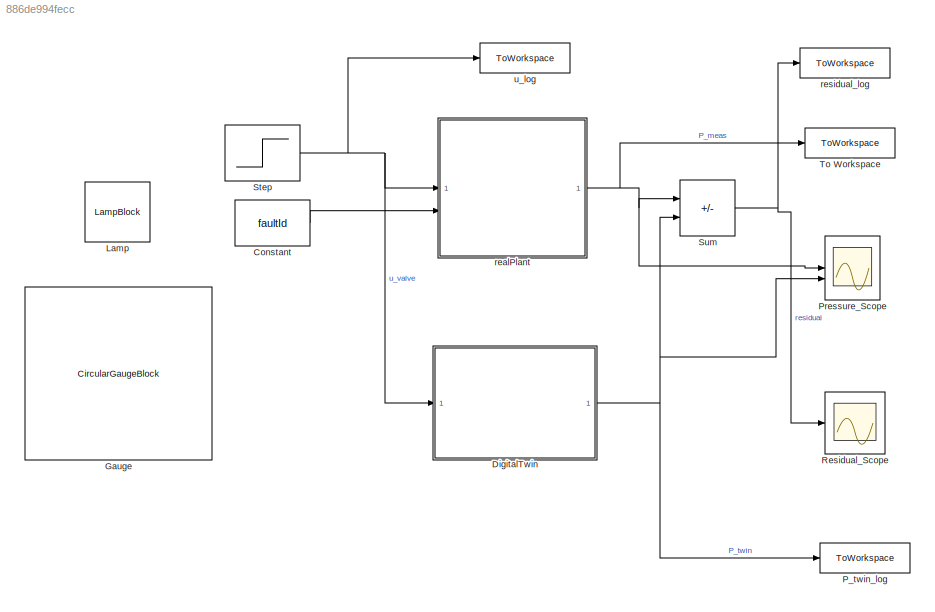
MODEL slx_886de994fecc
KIND model
CONFIG AbsTol = auto
CONFIG EnableMultiTasking = off
CONFIG FixedStep = 0.02
CONFIG MaxStep = auto
CONFIG MinStep = auto
CONFIG RelTol = 1e-3
CONFIG SampleTimeConstraint = Unconstrained
CONFIG SolverName = ode4
CONFIG StartTime = 0.0
CONFIG StopTime = 20
BLOCK [Constant] Constant
  LockScale = on
  OutDataTypeStr = uint8
  Value = faultId
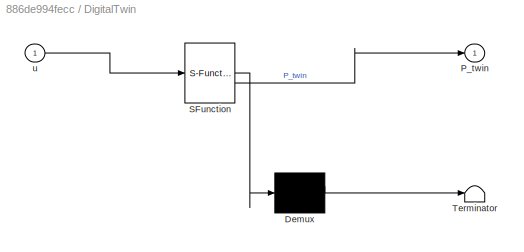
BLOCK [SubSystem] DigitalTwin
  ErrorFcn = Stateflow.Translate.translate
  PermitHierarchicalResolution = ExplicitOnly
  SFBlockType = MATLAB Function
  TreatAsAtomicUnit = on
BLOCK [Demux] DigitalTwin/ Demux 
  Outputs = 1
BLOCK [S-Function] DigitalTwin/ SFunction 
  EnableBusSupport = off
  FunctionName = sf_sfun
  PortCounts = [1 2]
  SFcnIsStateOwnerBlock = off
  SFunctionDeploymentMode = off
  Tag = Stateflow S-Function 1
BLOCK [Terminator] DigitalTwin/ Terminator 
BLOCK [Outport] DigitalTwin/P_twin
BLOCK [Inport] DigitalTwin/u
BLOCK [CircularGaugeBlock] Gauge
  ScaleMax = 800000
  TickInterval = 100000
BLOCK [LampBlock] Lamp
  DefaultColor = [192.0, 192.0, 192.0]
  LabelPosition = Hide
BLOCK [ToWorkspace] P_twin_log
  FixptAsFi = on
  MaxDataPoints = inf
  SampleTime = -1
  VariableName = P_twin_log
BLOCK [Scope] Pressure_Scope
  ActiveDisplayYMaximum = 1.3967374769788576E+7
  ActiveDisplayYMinimum = -1.4791229280971675E+6
  DataLogging = on
  DataLoggingSaveFormat = Structure With Time
  DataLoggingVariableName = pressure_data
  Floating = off
  GraphicalSettings = {"Style":{"BackgroundColor":[0.12941176470588237,0.12941176470588237,0.12941176470588237],"AxesColor":[0.07058823529411765,0.07058823529411765,0.07058823529411765],"LabelsColor":[0.8509803921568627,0.8509803921568627,0.8509803921568627],"PreserveColors":false,"Visible":[true,true],"LineStyle":["-","-"],"LineWidth":[1.5,1.5],"BarWidth":[0.9,0.9],"LineColor":["auto","auto"],"LineFaceAlpha":[1,1],"Li...<+2109ch>
  MultipleDisplayCache = [{"MaxYLimMag":1.3967374769788576E+7,"MaxYLimReal":1.3967374769788576E+7,"MinYLimMag":0,"MinYLimReal":-1.4791229280971675E+6,"PlotAsMagnitudePhase":false,"ShowGrid":true,"ShowLegend":false,"Title":"%<SignalLabel>","YLabel":""}]
  NumInputPorts = 2
  ScopeFrameLocation = window
  WasSavedAsWebScope = on
  WindowPosition = [35.000000,372.000000,560.000000,420.000000,]
BLOCK [Scope] Residual_Scope
  ActiveDisplayYMaximum = -34001.019558895554
  ActiveDisplayYMinimum = -35998.958048376757
  Floating = off
  GraphicalSettings = {"Style":{"BackgroundColor":[0.12941176470588237,0.12941176470588237,0.12941176470588237],"AxesColor":[0.07058823529411765,0.07058823529411765,0.07058823529411765],"LabelsColor":[0.8509803921568627,0.8509803921568627,0.8509803921568627],"PreserveColors":false,"Visible":[true],"LineStyle":["-"],"LineWidth":[1.5],"BarWidth":[0.9],"LineColor":["auto"],"LineFaceAlpha":[1],"LineEdgeAlpha":[1],"Marker":...<+2028ch>
  MultipleDisplayCache = [{"MaxYLimMag":35998.958048376757,"MaxYLimReal":-34001.019558895554,"MinYLimMag":0,"MinYLimReal":-35998.958048376757,"PlotAsMagnitudePhase":false,"ShowGrid":true,"ShowLegend":false,"Title":"%<SignalLabel>","YLabel":""}]
  NumInputPorts = 1
  ScopeFrameLocation = window
  WasSavedAsWebScope = on
  WindowPosition = [35.000000,17.000000,560.000000,420.000000,]
BLOCK [Step] Step
  After = 0.8
  Before = 0.3
  SampleTime = Ts
  Time = 5
BLOCK [Sum] Sum
  IconShape = rectangular
  Inputs = |+-
BLOCK [ToWorkspace] To Workspace
  FixptAsFi = on
  MaxDataPoints = inf
  SampleTime = -1
  VariableName = P_meas_log
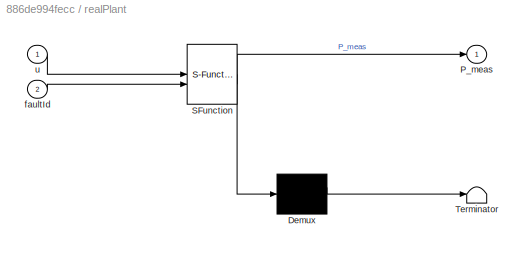
BLOCK [SubSystem] realPlant
  ErrorFcn = Stateflow.Translate.translate
  PermitHierarchicalResolution = ExplicitOnly
  SFBlockType = MATLAB Function
  TreatAsAtomicUnit = on
BLOCK [Demux] realPlant/ Demux 
  Outputs = 1
BLOCK [S-Function] realPlant/ SFunction 
  EnableBusSupport = off
  FunctionName = sf_sfun
  PortCounts = [2 2]
  SFcnIsStateOwnerBlock = off
  SFunctionDeploymentMode = off
  Tag = Stateflow S-Function 2
BLOCK [Terminator] realPlant/ Terminator 
BLOCK [Outport] realPlant/P_meas
BLOCK [Inport] realPlant/faultId
  Port = 2
BLOCK [Inport] realPlant/u
BLOCK [ToWorkspace] residual_log
  FixptAsFi = on
  MaxDataPoints = inf
  SampleTime = -1
  VariableName = residual_log
BLOCK [ToWorkspace] u_log
  FixptAsFi = on
  MaxDataPoints = inf
  SampleTime = -1
  VariableName = u_log
LINE Constant:1 -> realPlant:2
NET DigitalTwin:1 -> P_twin_log:1, Pressure_Scope:2, Sum:2
NET Step:1 -> DigitalTwin:1, realPlant:1, u_log:1
NET Sum:1 -> Residual_Scope:1, residual_log:1
NET realPlant:1 -> Pressure_Scope:1, Sum:1, To Workspace:1
note: NET lines group one-source signal fan-out (src -> all destinations, sorted); 1:1 wires keep LINE
CHART realPlant states=1 transitions=1
  STATE_LABEL 'eML_blk_kernel()'
  STATE_LABEL 'SCRIPT:\nfunction P_meas = RealPlantStep(u, faultId)\n%#codegen\n% Real pneumatic plant with fault injection\n% Inputs:\n%   u       - valve command [0, 1]\n%   faultId - fault type: 0=normal, 1-7=various faults\n% Output:\n%   P_meas  - measured pressure [Pa]\n\n    persistent P\n    if isempty(P)\n        P = 1.01325e5;  % Initial atmospheric pressure\n    end\n    \n    % ===== PHYSICAL PARAMETERS =====\n    T...<+2500ch>'
CHART DigitalTwin states=1 transitions=1
  STATE_LABEL 'eML_blk_kernel()'
  STATE_LABEL 'SCRIPT:\nfunction P_twin = TwinStep(u)\n%#codegen\n% Ideal digital twin - no faults, nominal parameters\n% Input:\n%   u      - valve command [0, 1]\n% Output:\n%   P_twin - twin pressure estimate [Pa]\n\n    persistent P\n    if isempty(P)\n        P = 1.01325e5;  % Initial atmospheric pressure\n    end\n    \n    % ===== NOMINAL PARAMETERS (NO FAULTS) =====\n    Ts = 0.02;                  % Sample time\n    Ps...<+661ch>'
CHART  states=0 transitions=0
CHART  states=0 transitions=0
